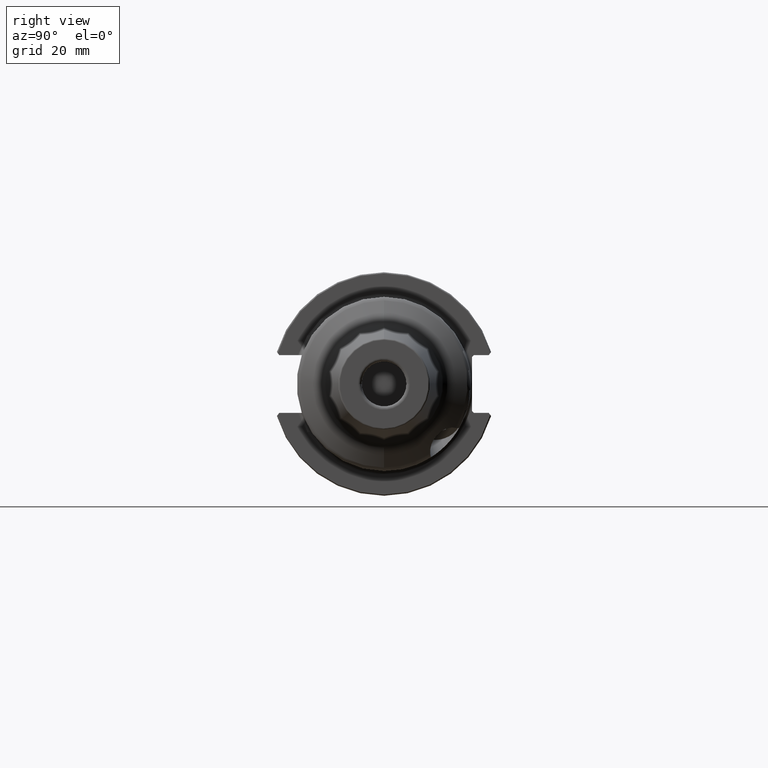
[diagram: clean part render]
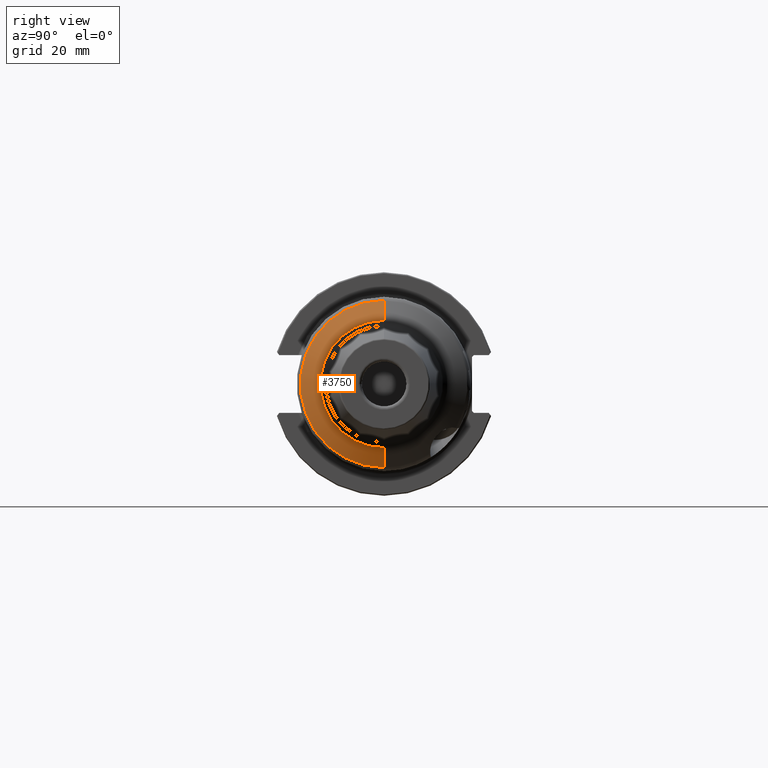
[diagram: same view with one face highlighted and labeled with its STEP entity id]
A machine part, right view. The second image highlights one B-rep face of the part: STEP entity #3750.
In plain terms, the highlighted conical surface has half-angle 60 deg.
Its self-contained STEP definition (entity closure, byte-faithful):
#1228=CARTESIAN_POINT('',(4.918556645054E1,0.E0,0.E0));
#1229=DIRECTION('',(1.E0,0.E0,0.E0));
#1230=DIRECTION('',(0.E0,0.E0,1.E0));
#1231=AXIS2_PLACEMENT_3D('',#1228,#1229,#1230);
#1233=DIRECTION('',(-5.E-1,1.286924637830E-11,-8.660254037844E-1));
#1234=VECTOR('',#1233,6.548093321904E0);
#1235=CARTESIAN_POINT('',(4.918556645054E1,-2.294585358469E-13,
-1.807918483686E1));
#1236=LINE('',#1235,#1234);
#1237=CARTESIAN_POINT('',(4.591151978958E1,0.E0,0.E0));
#1238=DIRECTION('',(-1.E0,0.E0,0.E0));
#1239=DIRECTION('',(0.E0,0.E0,-1.E0));
#1240=AXIS2_PLACEMENT_3D('',#1237,#1238,#1239);
#1242=DIRECTION('',(-5.E-1,5.999684961837E-13,8.660254037844E-1));
#1243=VECTOR('',#1242,6.548093321903E0);
#1244=CARTESIAN_POINT('',(4.918556645054E1,2.248392090797E-13,
1.807918483686E1));
#1245=LINE('',#1244,#1243);
#2454=CARTESIAN_POINT('',(4.591151978958E1,0.E0,-2.375E1));
#2455=CARTESIAN_POINT('',(4.591151978958E1,0.E0,2.375E1));
#2456=VERTEX_POINT('',#2454);
#2457=VERTEX_POINT('',#2455);
#2462=CARTESIAN_POINT('',(4.918556645054E1,0.E0,1.807918483686E1));
#2463=CARTESIAN_POINT('',(4.918556645054E1,0.E0,-1.807918483686E1));
#2464=VERTEX_POINT('',#2462);
#2465=VERTEX_POINT('',#2463);
#3739=CARTESIAN_POINT('',(4.754854312006E1,0.E0,0.E0));
#3740=DIRECTION('',(-1.E0,0.E0,0.E0));
#3741=DIRECTION('',(0.E0,0.E0,-1.E0));
#3742=AXIS2_PLACEMENT_3D('',#3739,#3740,#3741);
#3743=CONICAL_SURFACE('',#3742,2.091459241843E1,6.E1);
#3744=ORIENTED_EDGE('',*,*,#3730,.T.);
#3745=ORIENTED_EDGE('',*,*,#3705,.T.);
#3746=ORIENTED_EDGE('',*,*,#3632,.T.);
#3747=ORIENTED_EDGE('',*,*,#3699,.F.);
#3748=EDGE_LOOP('',(#3744,#3745,#3746,#3747));
#3749=FACE_OUTER_BOUND('',#3748,.F.);
#3750=ADVANCED_FACE('',(#3749),#3743,.T.);
#1232=CIRCLE('',#1231,1.807918483686E1);
#1241=CIRCLE('',#1240,2.375E1);
#3632=EDGE_CURVE('',#2456,#2457,#1241,.T.);
#3699=EDGE_CURVE('',#2464,#2457,#1245,.T.);
#3705=EDGE_CURVE('',#2465,#2456,#1236,.T.);
#3730=EDGE_CURVE('',#2464,#2465,#1232,.T.);